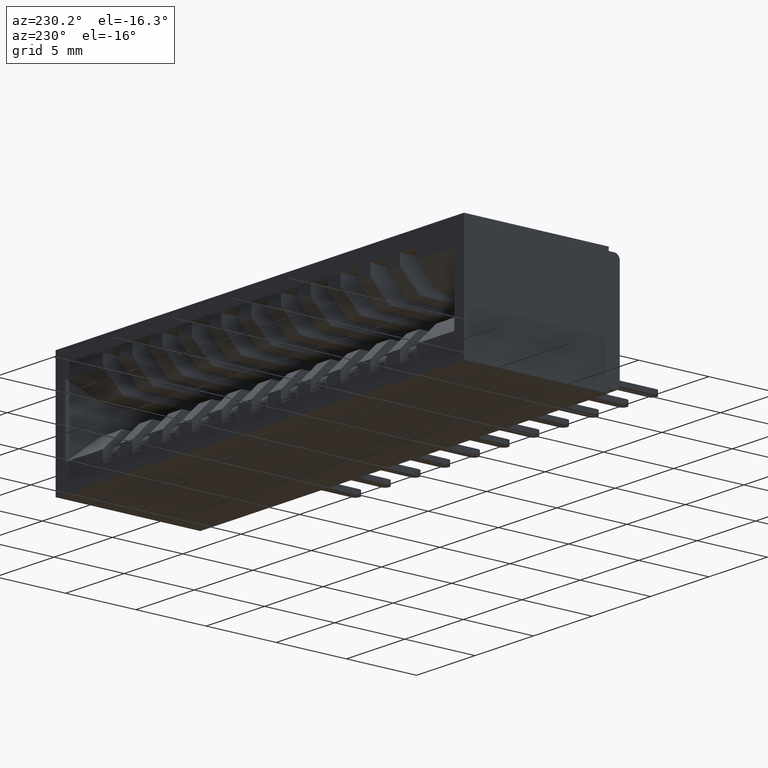
[diagram: clean part render]
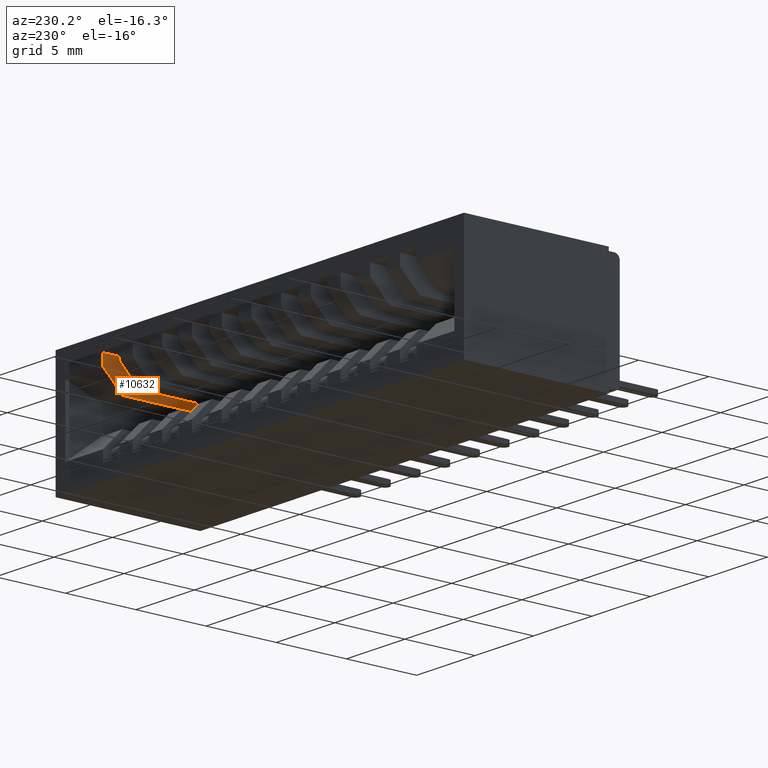
[diagram: same view with one face highlighted and labeled with its STEP entity id]
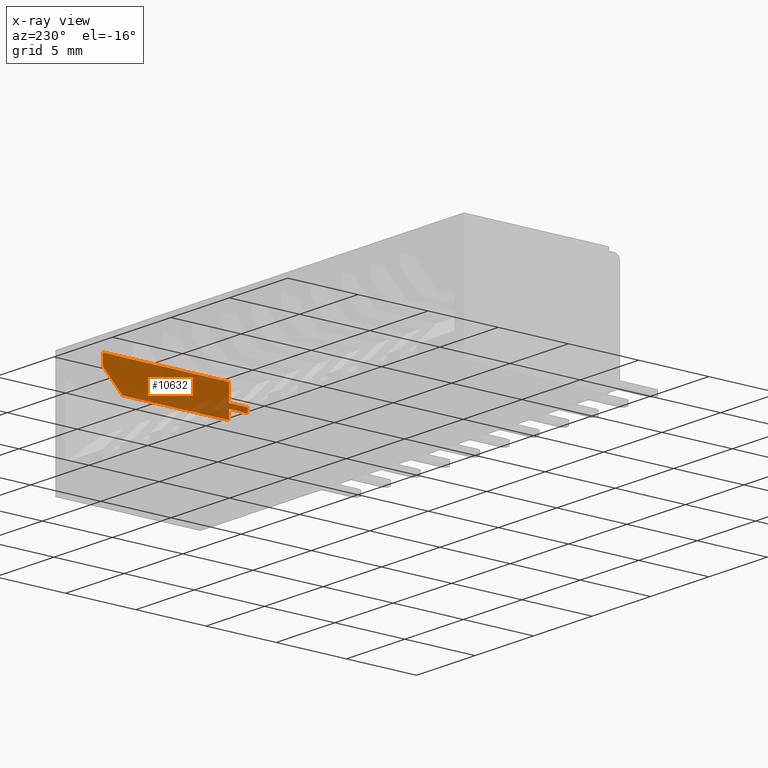
[diagram: x-ray of the same camera — body ghosted, the highlighted face saturated]
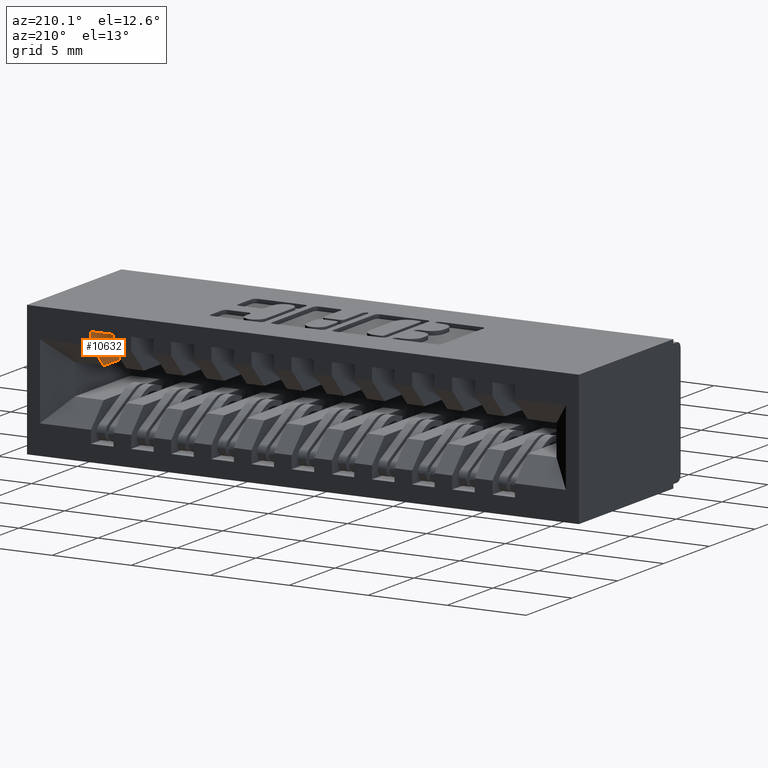
[diagram: same view with one face highlighted and labeled with its STEP entity id]
A machine part, auxiliary view. The second image highlights one B-rep face of the part: STEP entity #10632.
The next image is the same camera in x-ray: the body ghosted, the highlighted face saturated — about 30% of this face is hidden behind the body in this view.
A second angle (auxiliary view) of the same face is appended — the face is thin or edge-on in the first view.
In plain terms, the highlighted planar face has unit normal (1, 0, 0).
Its self-contained STEP definition (entity closure, byte-faithful):
#118 = CARTESIAN_POINT ( 'NONE',  ( 1.515499999999999000, 0.1420000000000000200, -0.1269999999999999700 ) ) ;
#306 = CARTESIAN_POINT ( 'NONE',  ( 1.515499999999998700, -3.937007874019685500E-005, -0.08850000000000016200 ) ) ;
#518 = CARTESIAN_POINT ( 'NONE',  ( 1.515499999999998700, 0.03100000000000000000, -0.1015000000000001700 ) ) ;
#780 = EDGE_CURVE ( 'NONE', #16426, #2086, #4967, .T. ) ;
#1007 = DIRECTION ( 'NONE',  ( 0.0000000000000000000, 0.0000000000000000000, -1.000000000000000000 ) ) ;
#1191 = VECTOR ( 'NONE', #2841, 39.37007874015748100 ) ;
#1234 = LINE ( 'NONE', #1741, #1191 ) ;
#1347 = CARTESIAN_POINT ( 'NONE',  ( 1.515499999999999000, 0.08300000000000006000, -0.04099999999999995300 ) ) ;
#1741 = CARTESIAN_POINT ( 'NONE',  ( 1.515499999999998700, -3.937007874019685500E-005, -0.1015000000000001700 ) ) ;
#2086 = VERTEX_POINT ( 'NONE', #4234 ) ;
#2274 = PLANE ( 'NONE',  #14405 ) ;
#2319 = EDGE_CURVE ( 'NONE', #13974, #2086, #16279, .T. ) ;
#2612 = VECTOR ( 'NONE', #14648, 39.37007874015748100 ) ;
#2641 = FACE_OUTER_BOUND ( 'NONE', #9498, .T. ) ;
#2658 = LINE ( 'NONE', #15411, #2612 ) ;
#2841 = DIRECTION ( 'NONE',  ( -0.0000000000000000000, 1.000000000000000000, 1.742249995959351000E-016 ) ) ;
#3670 = DIRECTION ( 'NONE',  ( -0.0000000000000000000, 1.000000000000000000, 1.742249995959351000E-016 ) ) ;
#3943 = DIRECTION ( 'NONE',  ( 0.0000000000000000000, -1.000000000000000000, 9.646355909831437800E-017 ) ) ;
#4215 = CARTESIAN_POINT ( 'NONE',  ( 1.515499999999999000, 0.4370000000000000600, -0.04099999999999998800 ) ) ;
#4234 = CARTESIAN_POINT ( 'NONE',  ( 1.515499999999999000, 0.3820000000000000600, -0.1269999999999999700 ) ) ;
#4352 = VERTEX_POINT ( 'NONE', #14925 ) ;
#4777 = CARTESIAN_POINT ( 'NONE',  ( 1.515499999999999000, 0.08300000000000006000, -0.1269999999999999700 ) ) ;
#4791 = VECTOR ( 'NONE', #12251, 39.37007874015748100 ) ;
#4930 = EDGE_CURVE ( 'NONE', #11875, #13974, #10180, .T. ) ;
#4967 = LINE ( 'NONE', #7933, #4791 ) ;
#5129 = CARTESIAN_POINT ( 'NONE',  ( 1.515499999999998700, 0.08300000000000007400, -0.08850000000000014800 ) ) ;
#5482 = VECTOR ( 'NONE', #8906, 39.37007874015748100 ) ;
#5527 = LINE ( 'NONE', #13231, #5482 ) ;
#6212 = EDGE_CURVE ( 'NONE', #8804, #10414, #5527, .T. ) ;
#6241 = VECTOR ( 'NONE', #10690, 39.37007874015748100 ) ;
#6497 = LINE ( 'NONE', #7590, #6241 ) ;
#7495 = ORIENTED_EDGE ( 'NONE', *, *, #7623, .F. ) ;
#7542 = ORIENTED_EDGE ( 'NONE', *, *, #10637, .T. ) ;
#7590 = CARTESIAN_POINT ( 'NONE',  ( 1.515499999999999000, 0.4370000000000000600, -0.1269999999999999700 ) ) ;
#7623 = EDGE_CURVE ( 'NONE', #7648, #4352, #1234, .T. ) ;
#7648 = VERTEX_POINT ( 'NONE', #518 ) ;
#7674 = ORIENTED_EDGE ( 'NONE', *, *, #15188, .T. ) ;
#7710 = ORIENTED_EDGE ( 'NONE', *, *, #6212, .F. ) ;
#7762 = ORIENTED_EDGE ( 'NONE', *, *, #15870, .F. ) ;
#7933 = CARTESIAN_POINT ( 'NONE',  ( 1.515499999999999000, 0.3819999999999999000, -0.1270000000000001100 ) ) ;
#7964 = CARTESIAN_POINT ( 'NONE',  ( 1.515499999999999000, 0.08300000000000006000, -0.1269999999999999700 ) ) ;
#8032 = ORIENTED_EDGE ( 'NONE', *, *, #12069, .F. ) ;
#8218 = ORIENTED_EDGE ( 'NONE', *, *, #780, .T. ) ;
#8258 = ORIENTED_EDGE ( 'NONE', *, *, #2319, .F. ) ;
#8372 = ORIENTED_EDGE ( 'NONE', *, *, #4930, .F. ) ;
#8414 = CARTESIAN_POINT ( 'NONE',  ( 1.515499999999999000, 0.08300000000000006000, -0.1269999999999999700 ) ) ;
#8544 = ORIENTED_EDGE ( 'NONE', *, *, #9477, .F. ) ;
#8804 = VERTEX_POINT ( 'NONE', #14569 ) ;
#8906 = DIRECTION ( 'NONE',  ( 0.0000000000000000000, 0.0000000000000000000, -1.000000000000000000 ) ) ;
#9477 = EDGE_CURVE ( 'NONE', #4352, #11875, #12483, .T. ) ;
#9498 = EDGE_LOOP ( 'NONE', ( #7495, #7542, #7674, #7710, #7762, #8032, #8218, #8258, #8372, #8544 ) ) ;
#10180 = LINE ( 'NONE', #16073, #10235 ) ;
#10235 = VECTOR ( 'NONE', #15793, 39.37007874015748100 ) ;
#10414 = VERTEX_POINT ( 'NONE', #5129 ) ;
#10632 = ADVANCED_FACE ( 'NONE', ( #2641 ), #2274, .F. ) ;
#10637 = EDGE_CURVE ( 'NONE', #7648, #15220, #2658, .T. ) ;
#10690 = DIRECTION ( 'NONE',  ( 0.0000000000000000000, 0.0000000000000000000, 1.000000000000000000 ) ) ;
#11420 = DIRECTION ( 'NONE',  ( 0.0000000000000000000, 1.000000000000000000, 0.0000000000000000000 ) ) ;
#11875 = VERTEX_POINT ( 'NONE', #8414 ) ;
#12069 = EDGE_CURVE ( 'NONE', #16426, #14386, #6497, .T. ) ;
#12198 = VECTOR ( 'NONE', #1007, 39.37007874015748100 ) ;
#12249 = VECTOR ( 'NONE', #3943, 39.37007874015748100 ) ;
#12251 = DIRECTION ( 'NONE',  ( -0.0000000000000000000, -0.7071067811865493500, -0.7071067811865458000 ) ) ;
#12275 = LINE ( 'NONE', #4215, #12249 ) ;
#12483 = LINE ( 'NONE', #1347, #12198 ) ;
#13231 = CARTESIAN_POINT ( 'NONE',  ( 1.515499999999999000, 0.08300000000000006000, -0.04099999999999995300 ) ) ;
#13377 = CARTESIAN_POINT ( 'NONE',  ( 1.515499999999999000, 0.4370000000000000600, -0.04099999999999998800 ) ) ;
#13667 = VECTOR ( 'NONE', #3670, 39.37007874015748100 ) ;
#13792 = LINE ( 'NONE', #306, #13667 ) ;
#13974 = VERTEX_POINT ( 'NONE', #118 ) ;
#14386 = VERTEX_POINT ( 'NONE', #13377 ) ;
#14405 = AXIS2_PLACEMENT_3D ( 'NONE', #4777, #16095, #15618 ) ;
#14569 = CARTESIAN_POINT ( 'NONE',  ( 1.515499999999999000, 0.08300000000000006000, -0.04099999999999995300 ) ) ;
#14648 = DIRECTION ( 'NONE',  ( 0.0000000000000000000, 0.0000000000000000000, 1.000000000000000000 ) ) ;
#14925 = CARTESIAN_POINT ( 'NONE',  ( 1.515499999999998700, 0.08300000000000007400, -0.1015000000000001500 ) ) ;
#15188 = EDGE_CURVE ( 'NONE', #15220, #10414, #13792, .T. ) ;
#15220 = VERTEX_POINT ( 'NONE', #16790 ) ;
#15411 = CARTESIAN_POINT ( 'NONE',  ( 1.515499999999999000, 0.03100000000000000000, -0.1269999999999999700 ) ) ;
#15618 = DIRECTION ( 'NONE',  ( 0.0000000000000000000, 0.0000000000000000000, -1.000000000000000000 ) ) ;
#15719 = CARTESIAN_POINT ( 'NONE',  ( 1.515499999999999000, 0.4370000000000000000, -0.07200000000000028600 ) ) ;
#15793 = DIRECTION ( 'NONE',  ( 0.0000000000000000000, 1.000000000000000000, 0.0000000000000000000 ) ) ;
#15870 = EDGE_CURVE ( 'NONE', #14386, #8804, #12275, .T. ) ;
#16073 = CARTESIAN_POINT ( 'NONE',  ( 1.515499999999999000, 0.08300000000000006000, -0.1269999999999999700 ) ) ;
#16095 = DIRECTION ( 'NONE',  ( 1.000000000000000000, -0.0000000000000000000, 0.0000000000000000000 ) ) ;
#16262 = VECTOR ( 'NONE', #11420, 39.37007874015748100 ) ;
#16279 = LINE ( 'NONE', #7964, #16262 ) ;
#16426 = VERTEX_POINT ( 'NONE', #15719 ) ;
#16790 = CARTESIAN_POINT ( 'NONE',  ( 1.515499999999998700, 0.03100000000000000000, -0.08850000000000016200 ) ) ;